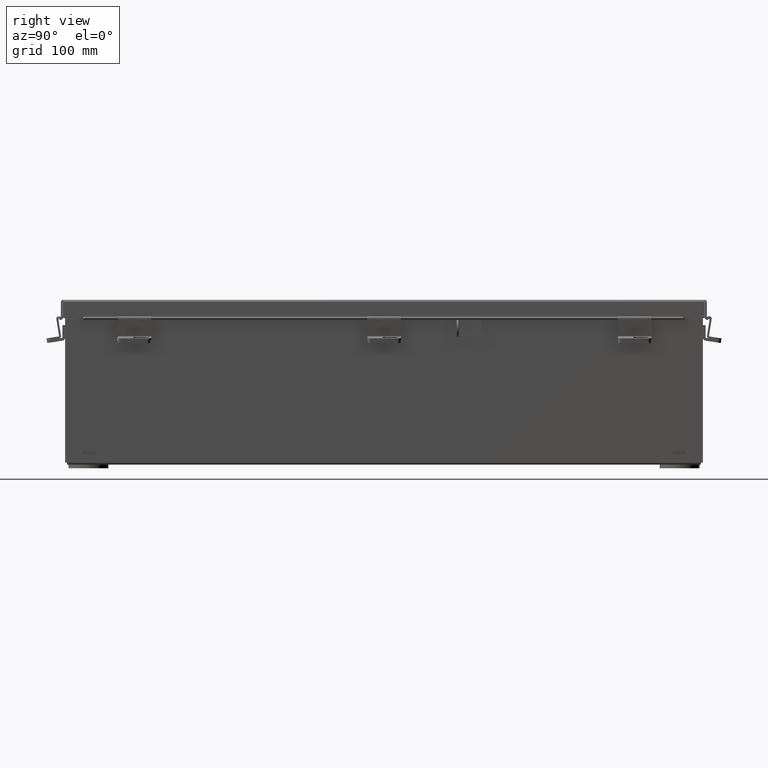
[diagram: clean part render]
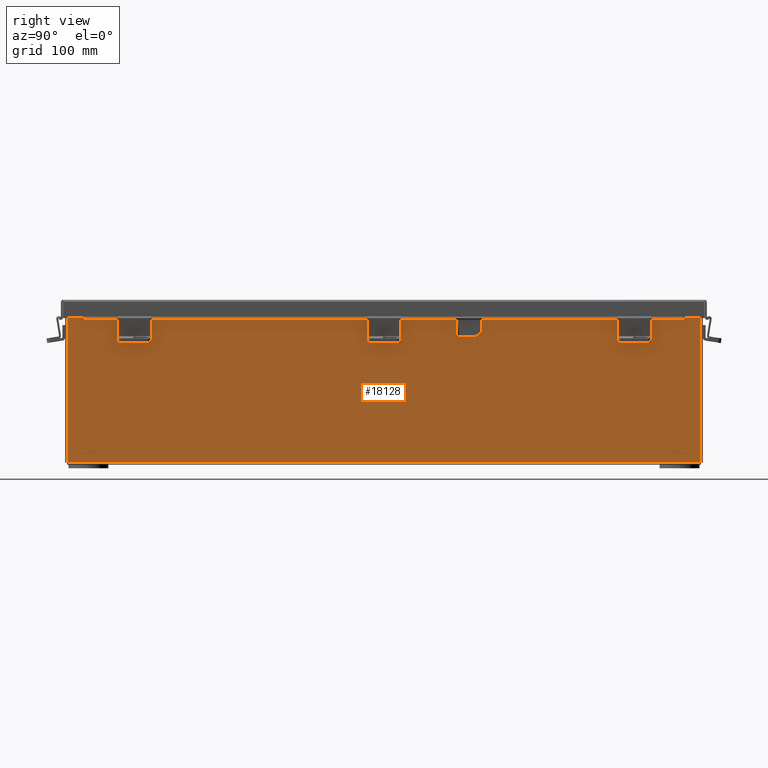
[diagram: same view with one face highlighted and labeled with its STEP entity id]
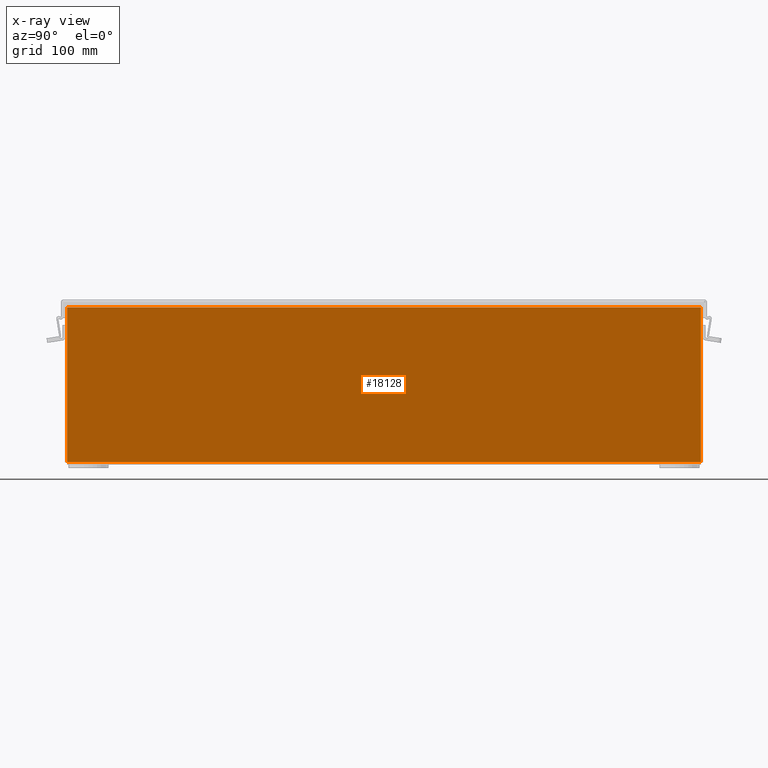
[diagram: x-ray of the same camera — body ghosted, the highlighted face saturated]
A machine part, right view. The second image highlights one B-rep face of the part: STEP entity #18128.
The next image is the same camera in x-ray: the body ghosted, the highlighted face saturated — about 0% of this face is hidden behind the body in this view.
In plain terms, the highlighted planar face has unit normal (-1, 0, 0).
Its self-contained STEP definition (entity closure, byte-faithful):
#142 = EDGE_CURVE ( 'NONE', #16214, #12360, #11380, .T. ) ;
#2519 = ORIENTED_EDGE ( 'NONE', *, *, #19214, .F. ) ;
#2551 = CARTESIAN_POINT ( 'NONE',  ( 2.999999999999999600, -11.92530000000000000, -1.062859610035002400E-014 ) ) ;
#2673 = DIRECTION ( 'NONE',  ( 3.455316574900958600E-015, -3.735477378271307500E-016, 1.000000000000000000 ) ) ;
#3281 = VECTOR ( 'NONE', #18143, 39.37007874015748100 ) ;
#4108 = PLANE ( 'NONE',  #9123 ) ;
#5463 = ORIENTED_EDGE ( 'NONE', *, *, #14199, .T. ) ;
#5488 = ORIENTED_EDGE ( 'NONE', *, *, #142, .T. ) ;
#5847 = DIRECTION ( 'NONE',  ( -1.000000000000000000, 0.0000000000000000000, 3.455316574900958600E-015 ) ) ;
#6045 = CARTESIAN_POINT ( 'NONE',  ( 2.999999999999999600, -11.92530000000000000, 0.01299999999999984300 ) ) ;
#6759 = VECTOR ( 'NONE', #16244, 39.37007874015748100 ) ;
#7439 = EDGE_LOOP ( 'NONE', ( #5463, #5488, #2519, #12624 ) ) ;
#9123 = AXIS2_PLACEMENT_3D ( 'NONE', #16215, #5847, #17948 ) ;
#10157 = CARTESIAN_POINT ( 'NONE',  ( 3.000000000000018200, 11.92529999999998900, 5.837600000000000100 ) ) ;
#11380 = LINE ( 'NONE', #2551, #6759 ) ;
#11828 = VECTOR ( 'NONE', #22471, 39.37007874015748100 ) ;
#12106 = VERTEX_POINT ( 'NONE', #10157 ) ;
#12360 = VERTEX_POINT ( 'NONE', #14243 ) ;
#12624 = ORIENTED_EDGE ( 'NONE', *, *, #13968, .T. ) ;
#13968 = EDGE_CURVE ( 'NONE', #15647, #12106, #20773, .T. ) ;
#14175 = FACE_OUTER_BOUND ( 'NONE', #7439, .T. ) ;
#14199 = EDGE_CURVE ( 'NONE', #12106, #16214, #15876, .T. ) ;
#14243 = CARTESIAN_POINT ( 'NONE',  ( 2.999999999999999600, -11.92530000000000000, 0.01299999999999941700 ) ) ;
#15647 = VERTEX_POINT ( 'NONE', #21515 ) ;
#15876 = LINE ( 'NONE', #17294, #11828 ) ;
#15998 = LINE ( 'NONE', #6045, #3281 ) ;
#16101 = CARTESIAN_POINT ( 'NONE',  ( 3.000000000000020000, -11.92530000000000000, 5.837600000000000100 ) ) ;
#16214 = VERTEX_POINT ( 'NONE', #16101 ) ;
#16215 = CARTESIAN_POINT ( 'NONE',  ( 2.999999999999999600, 0.0000000000000000000, -1.062859610035002400E-014 ) ) ;
#16244 = DIRECTION ( 'NONE',  ( -3.455316574900958600E-015, 0.0000000000000000000, -1.000000000000000000 ) ) ;
#17294 = CARTESIAN_POINT ( 'NONE',  ( 3.000000000000018200, 11.92529999999999300, 5.837600000000000100 ) ) ;
#17948 = DIRECTION ( 'NONE',  ( 3.455316574900958600E-015, 0.0000000000000000000, 1.000000000000000000 ) ) ;
#18128 = ADVANCED_FACE ( 'NONE', ( #14175 ), #4108, .F. ) ;
#18143 = DIRECTION ( 'NONE',  ( -1.583087998225295500E-031, -1.000000000000000000, -4.581600452255731000E-017 ) ) ;
#19214 = EDGE_CURVE ( 'NONE', #15647, #12360, #15998, .T. ) ;
#20230 = VECTOR ( 'NONE', #2673, 39.37007874015748100 ) ;
#20773 = LINE ( 'NONE', #21584, #20230 ) ;
#21515 = CARTESIAN_POINT ( 'NONE',  ( 2.999999999999999600, 11.92529999999999300, 0.01300000000000093600 ) ) ;
#21584 = CARTESIAN_POINT ( 'NONE',  ( 2.999999999999999600, 11.92529999999999600, -6.172269060685194900E-015 ) ) ;
#22471 = DIRECTION ( 'NONE',  ( -0.0000000000000000000, -1.000000000000000000, -0.0000000000000000000 ) ) ;